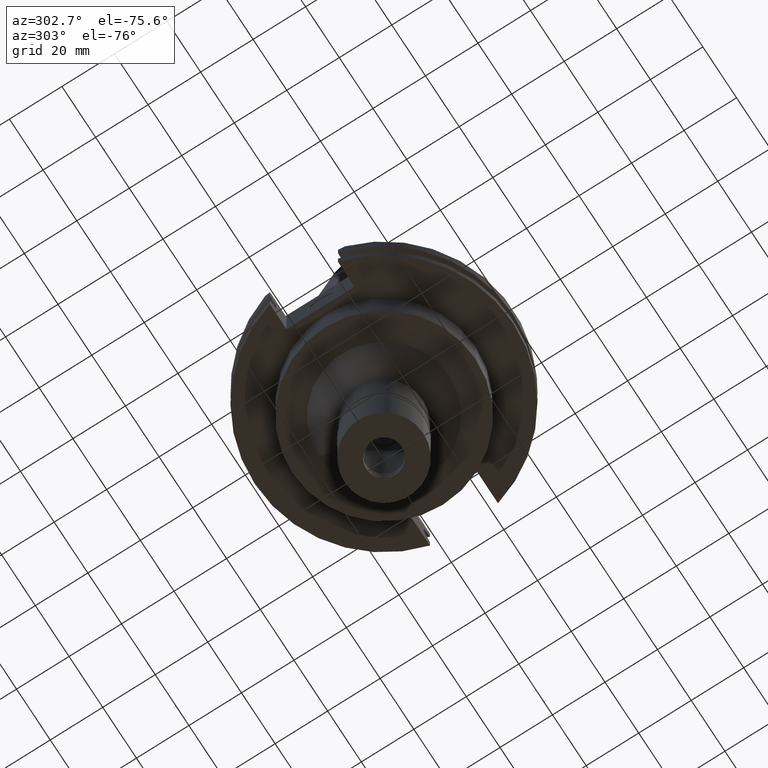
[diagram: clean part render]
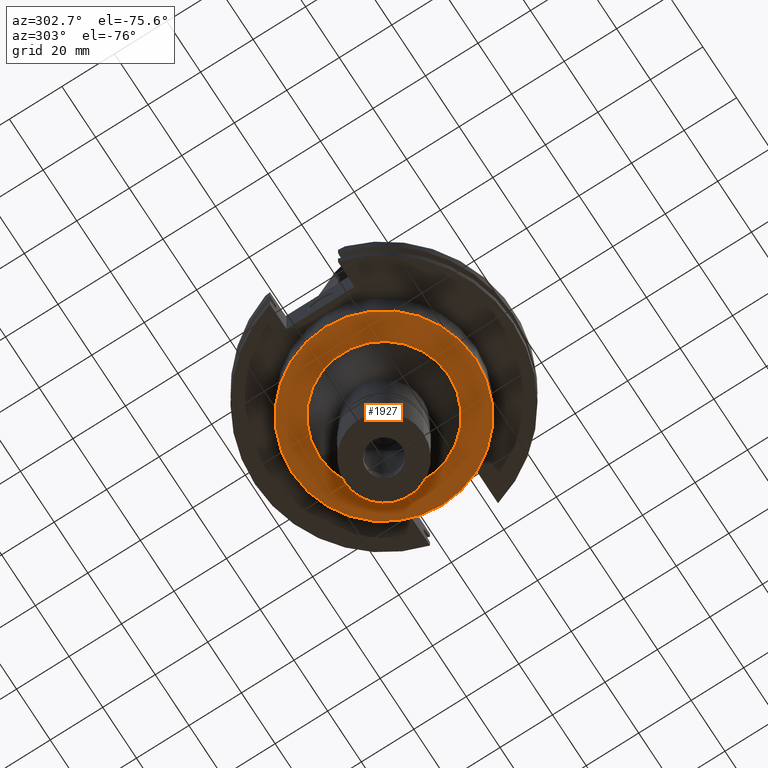
[diagram: same view with one face highlighted and labeled with its STEP entity id]
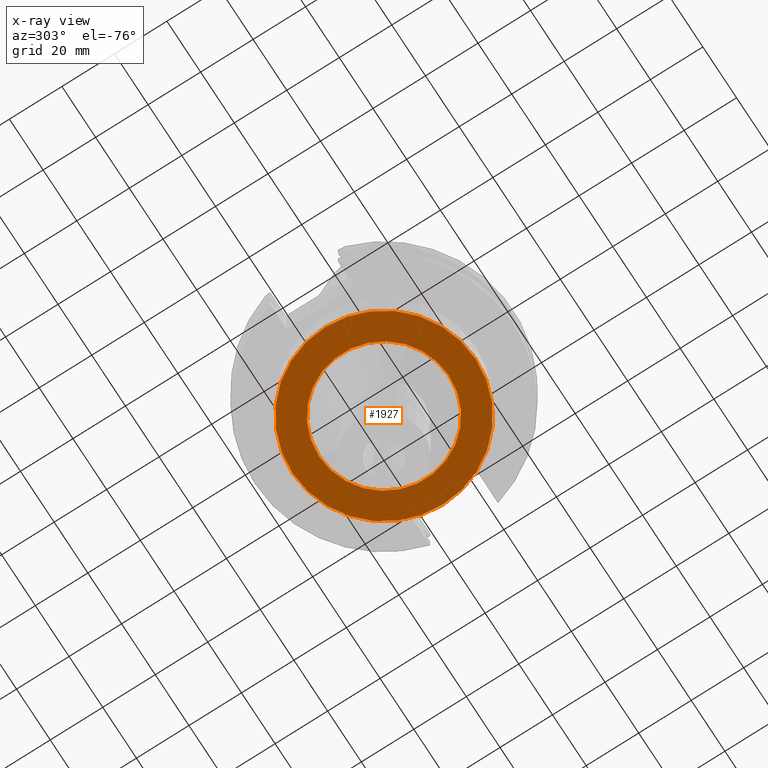
[diagram: x-ray of the same camera — body ghosted, the highlighted face saturated]
A machine part, auxiliary view. The second image highlights one B-rep face of the part: STEP entity #1927.
The next image is the same camera in x-ray: the body ghosted, the highlighted face saturated — about 4% of this face is hidden behind the body in this view.
In plain terms, the highlighted planar face has unit normal (0, 0, -1).
Its self-contained STEP definition (entity closure, byte-faithful):
#26 = EDGE_CURVE ( 'NONE', #2536, #3141, #1360, .T. ) ;
#201 = PLANE ( 'NONE',  #3200 ) ;
#275 = EDGE_CURVE ( 'NONE', #2626, #3094, #2965, .T. ) ;
#307 = DIRECTION ( 'NONE',  ( 0.0000000000000000000, 1.000000000000000000, 0.0000000000000000000 ) ) ;
#330 = CIRCLE ( 'NONE', #2215, 34.92499999999999716 ) ;
#393 = DIRECTION ( 'NONE',  ( 0.0000000000000000000, -1.000000000000000000, 0.0000000000000000000 ) ) ;
#477 = CARTESIAN_POINT ( 'NONE',  ( 0.0000000000000000000, 0.0000000000000000000, -35.00000000000000000 ) ) ;
#627 = CIRCLE ( 'NONE', #1441, 24.75000000000000000 ) ;
#733 = DIRECTION ( 'NONE',  ( 0.0000000000000000000, -1.000000000000000000, 0.0000000000000000000 ) ) ;
#887 = DIRECTION ( 'NONE',  ( 0.0000000000000000000, 0.0000000000000000000, -1.000000000000000000 ) ) ;
#888 = DIRECTION ( 'NONE',  ( 0.0000000000000000000, 1.000000000000000000, 0.0000000000000000000 ) ) ;
#911 = EDGE_CURVE ( 'NONE', #3141, #2536, #330, .T. ) ;
#1001 = CARTESIAN_POINT ( 'NONE',  ( 0.0000000000000000000, -24.75000000000000000, -35.00000000000000000 ) ) ;
#1032 = CARTESIAN_POINT ( 'NONE',  ( 0.0000000000000000000, -34.92499999999999716, -35.00000000000000000 ) ) ;
#1142 = ORIENTED_EDGE ( 'NONE', *, *, #911, .F. ) ;
#1197 = CARTESIAN_POINT ( 'NONE',  ( 0.0000000000000000000, 0.0000000000000000000, -35.00000000000000000 ) ) ;
#1360 = CIRCLE ( 'NONE', #3237, 34.92499999999999716 ) ;
#1372 = DIRECTION ( 'NONE',  ( 0.0000000000000000000, 0.0000000000000000000, 1.000000000000000000 ) ) ;
#1396 = CARTESIAN_POINT ( 'NONE',  ( 0.0000000000000000000, 0.0000000000000000000, -35.00000000000000000 ) ) ;
#1441 = AXIS2_PLACEMENT_3D ( 'NONE', #1197, #2737, #888 ) ;
#1522 = DIRECTION ( 'NONE',  ( 0.0000000000000000000, -1.000000000000000000, 0.0000000000000000000 ) ) ;
#1809 = EDGE_CURVE ( 'NONE', #3094, #2626, #627, .T. ) ;
#1846 = ORIENTED_EDGE ( 'NONE', *, *, #275, .F. ) ;
#1927 = ADVANCED_FACE ( 'NONE', ( #2274, #2302 ), #201, .T. ) ;
#2020 = DIRECTION ( 'NONE',  ( 0.0000000000000000000, 0.0000000000000000000, 1.000000000000000000 ) ) ;
#2215 = AXIS2_PLACEMENT_3D ( 'NONE', #2269, #2020, #733 ) ;
#2269 = CARTESIAN_POINT ( 'NONE',  ( 0.0000000000000000000, 2.579412320703999880E-14, -35.00000000000000000 ) ) ;
#2274 = FACE_OUTER_BOUND ( 'NONE', #2408, .T. ) ;
#2302 = FACE_BOUND ( 'NONE', #2449, .T. ) ;
#2309 = CARTESIAN_POINT ( 'NONE',  ( 0.0000000000000000000, 24.75000000000000000, -35.00000000000000000 ) ) ;
#2408 = EDGE_LOOP ( 'NONE', ( #2968, #1142 ) ) ;
#2449 = EDGE_LOOP ( 'NONE', ( #3194, #1846 ) ) ;
#2536 = VERTEX_POINT ( 'NONE', #3056 ) ;
#2626 = VERTEX_POINT ( 'NONE', #1001 ) ;
#2737 = DIRECTION ( 'NONE',  ( 0.0000000000000000000, 0.0000000000000000000, -1.000000000000000000 ) ) ;
#2804 = DIRECTION ( 'NONE',  ( 0.0000000000000000000, 0.0000000000000000000, -1.000000000000000000 ) ) ;
#2893 = CARTESIAN_POINT ( 'NONE',  ( 0.0000000000000000000, 2.579412320703999880E-14, -35.00000000000000000 ) ) ;
#2955 = AXIS2_PLACEMENT_3D ( 'NONE', #1396, #887, #393 ) ;
#2965 = CIRCLE ( 'NONE', #2955, 24.75000000000000000 ) ;
#2968 = ORIENTED_EDGE ( 'NONE', *, *, #26, .F. ) ;
#3056 = CARTESIAN_POINT ( 'NONE',  ( 0.0000000000000000000, 34.92499999999999716, -35.00000000000000000 ) ) ;
#3094 = VERTEX_POINT ( 'NONE', #2309 ) ;
#3141 = VERTEX_POINT ( 'NONE', #1032 ) ;
#3194 = ORIENTED_EDGE ( 'NONE', *, *, #1809, .F. ) ;
#3200 = AXIS2_PLACEMENT_3D ( 'NONE', #477, #2804, #1522 ) ;
#3237 = AXIS2_PLACEMENT_3D ( 'NONE', #2893, #1372, #307 ) ;